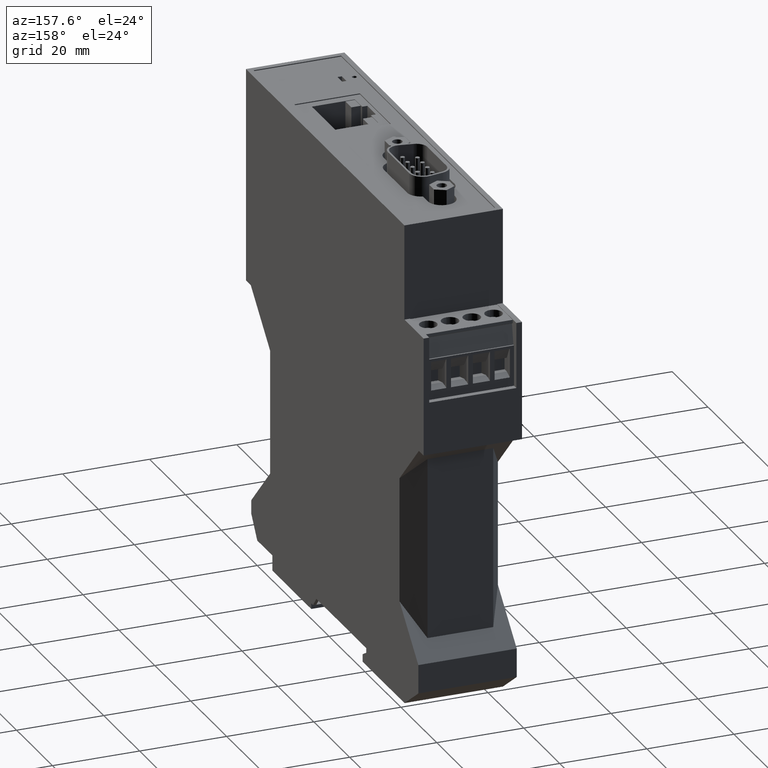
[diagram: clean part render]
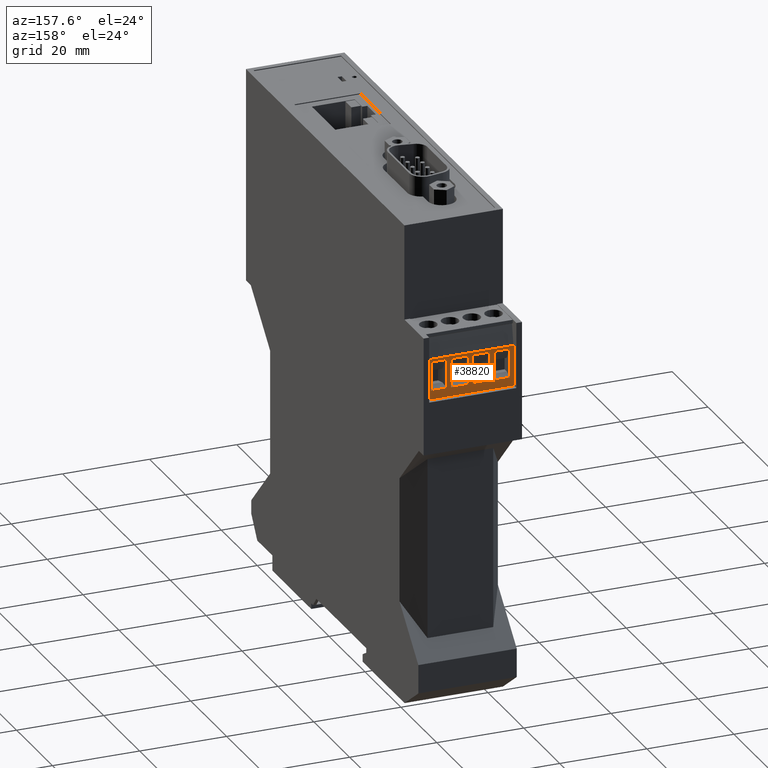
[diagram: same view with one face highlighted and labeled with its STEP entity id]
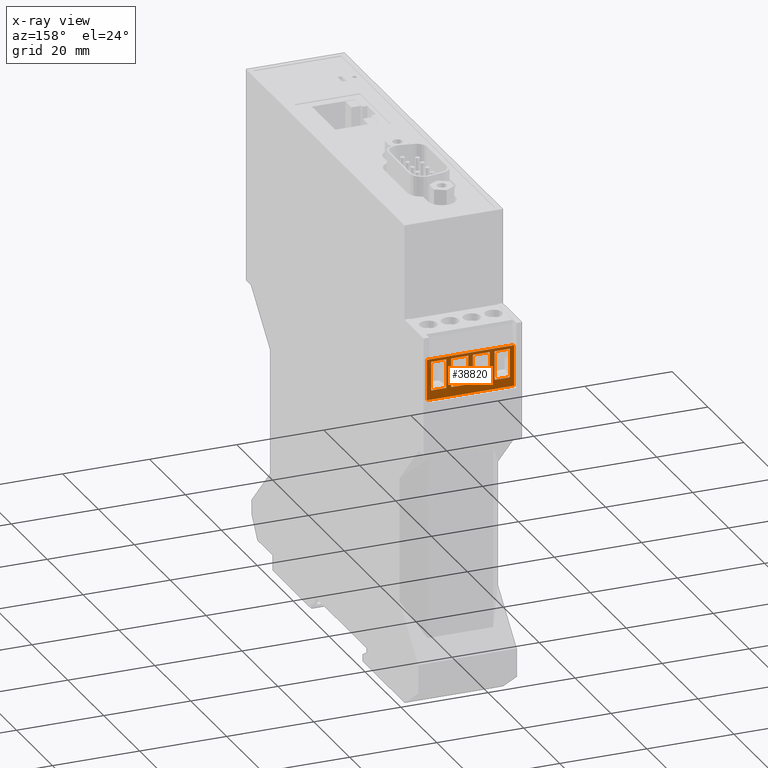
[diagram: x-ray of the same camera — body ghosted, the highlighted face saturated]
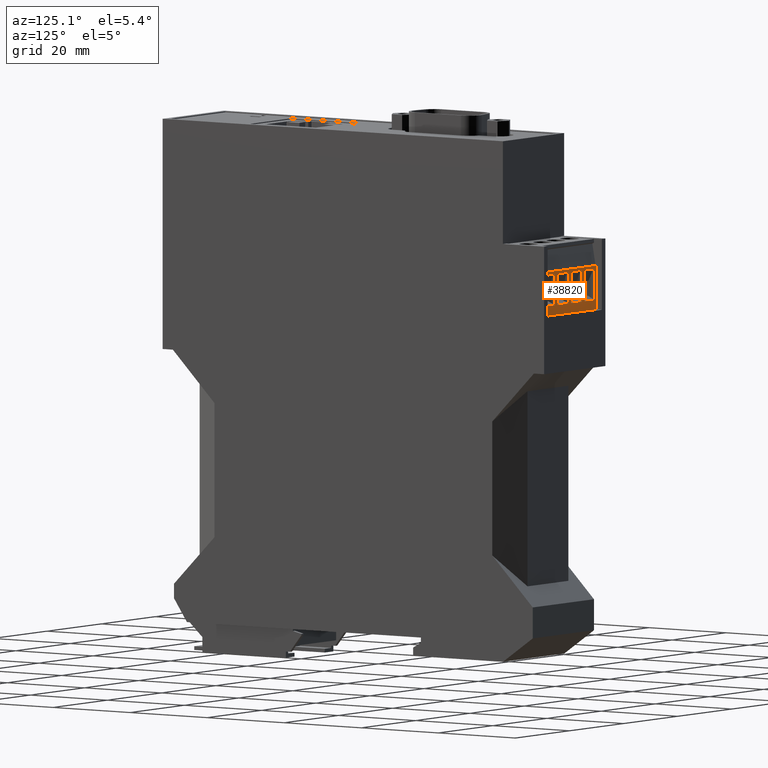
[diagram: same view with one face highlighted and labeled with its STEP entity id]
A machine part, auxiliary view. The second image highlights one B-rep face of the part: STEP entity #38820.
The next image is the same camera in x-ray: the body ghosted, the highlighted face saturated — about 0% of this face is hidden behind the body in this view.
A second angle (auxiliary view) of the same face is appended — the face is thin or edge-on in the first view.
In plain terms, the highlighted planar face has unit normal (0, 1, -0).
Its self-contained STEP definition (entity closure, byte-faithful):
#17620=CARTESIAN_POINT('',(30.7000000000093,70.0000000000079,
21.3000000001629));
#17630=VERTEX_POINT('',#17620);
#17680=CARTESIAN_POINT('',(30.7000000000093,70.0000000000079,0.));
#17690=DIRECTION('',(-3.43464755630887E-38,-2.21419669665522E-24,-1.));
#17700=VECTOR('',#17690,1.);
#17710=LINE('',#17680,#17700);
#17720=CARTESIAN_POINT('',(30.7000000000093,70.0000000000079,
1.30000000017083));
#17730=VERTEX_POINT('',#17720);
#17740=EDGE_CURVE('',#17630,#17730,#17710,.T.);
#34670=CARTESIAN_POINT('',(30.7000000000095,79.3850000000075,
21.3000000001629));
#34680=VERTEX_POINT('',#34670);
#34710=CARTESIAN_POINT('',(30.7000000000086,24.,21.3000000001629));
#34720=DIRECTION('',(1.54465812121769E-14,1.,-2.21419687687968E-24));
#34730=VECTOR('',#34720,1.);
#34740=LINE('',#34710,#34730);
#34750=EDGE_CURVE('',#17630,#34680,#34740,.T.);
#35310=CARTESIAN_POINT('',(30.7000000000086,24.,1.30000000017083));
#35320=DIRECTION('',(-1.54465812121769E-14,-1.,2.18623649095503E-24));
#35330=VECTOR('',#35320,1.);
#35340=LINE('',#35310,#35330);
#35350=CARTESIAN_POINT('',(30.7000000000095,79.3850000000075,
1.30000000017083));
#35360=VERTEX_POINT('',#35350);
#35370=EDGE_CURVE('',#35360,#17730,#35340,.T.);
#37160=CARTESIAN_POINT('',(30.7000000000095,79.3850000000075,
18.800000000168));
#37170=DIRECTION('',(0.,0.,1.));
#37180=VECTOR('',#37170,1.);
#37190=LINE('',#37160,#37180);
#37200=EDGE_CURVE('',#35360,#34680,#37190,.T.);
#37350=CARTESIAN_POINT('',(30.7000000000095,79.1850000000074,
1.90000000016795));
#37360=DIRECTION('',(1.,-1.54465812121769E-14,0.));
#37370=DIRECTION('',(-1.54465812121769E-14,-1.,0.));
#37380=AXIS2_PLACEMENT_3D('',#37350,#37360,#37370);
#37390=PLANE('',#37380);
#37400=ORIENTED_EDGE('',*,*,#17740,.T.);
#37410=ORIENTED_EDGE('',*,*,#34750,.F.);
#37420=ORIENTED_EDGE('',*,*,#37200,.T.);
#37430=ORIENTED_EDGE('',*,*,#35370,.F.);
#37440=EDGE_LOOP('',(#37430,#37420,#37410,#37400));
#37450=FACE_OUTER_BOUND('',#37440,.T.);
#37460=CARTESIAN_POINT('',(30.7000000000088,32.0872691733774,
16.8308375809643));
#37470=DIRECTION('',(-1.54465812121769E-14,-1.,2.17087541685807E-15));
#37480=VECTOR('',#37470,1.);
#37490=LINE('',#37460,#37480);
#37500=CARTESIAN_POINT('',(30.7000000000095,78.7500000000079,
16.8308375809642));
#37510=VERTEX_POINT('',#37500);
#37520=CARTESIAN_POINT('',(30.7000000000094,72.0917093768518,
16.8308375809642));
#37530=VERTEX_POINT('',#37520);
#37540=EDGE_CURVE('',#37510,#37530,#37490,.T.);
#37550=ORIENTED_EDGE('',*,*,#37540,.T.);
#37560=CARTESIAN_POINT('',(30.7000000000095,78.7500000000079,
18.800000000168));
#37570=DIRECTION('',(0.,0.,-1.));
#37580=VECTOR('',#37570,1.);
#37590=LINE('',#37560,#37580);
#37600=CARTESIAN_POINT('',(30.7000000000095,78.7500000000079,
20.3474841664259));
#37610=VERTEX_POINT('',#37600);
#37620=EDGE_CURVE('',#37610,#37510,#37590,.T.);
#37630=ORIENTED_EDGE('',*,*,#37620,.T.);
#37640=CARTESIAN_POINT('',(30.7000000000088,32.0872691733774,
20.3474841664258));
#37650=DIRECTION('',(1.54465812121769E-14,1.,1.35140074629844E-15));
#37660=VECTOR('',#37650,1.);
#37670=LINE('',#37640,#37660);
#37680=CARTESIAN_POINT('',(30.7000000000094,72.0917093768518,
20.3474841664259));
#37690=VERTEX_POINT('',#37680);
#37700=EDGE_CURVE('',#37690,#37610,#37670,.T.);
#37710=ORIENTED_EDGE('',*,*,#37700,.T.);
#37720=CARTESIAN_POINT('',(30.7000000000094,72.0917093768518,
18.800000000168));
#37730=DIRECTION('',(0.,0.,1.));
#37740=VECTOR('',#37730,1.);
#37750=LINE('',#37720,#37740);
#37760=EDGE_CURVE('',#37530,#37690,#37750,.T.);
#37770=ORIENTED_EDGE('',*,*,#37760,.T.);
#37780=EDGE_LOOP('',(#37770,#37710,#37630,#37550));
#37790=FACE_BOUND('',#37780,.T.);
#37800=CARTESIAN_POINT('',(30.7000000000088,32.0872691733774,
6.83083758096431));
#37810=DIRECTION('',(-1.54465812121769E-14,-1.,2.17087541685807E-15));
#37820=VECTOR('',#37810,1.);
#37830=LINE('',#37800,#37820);
#37840=CARTESIAN_POINT('',(30.7000000000095,78.7500000000079,
6.83083758096421));
#37850=VERTEX_POINT('',#37840);
#37860=CARTESIAN_POINT('',(30.7000000000094,72.0917093768518,
6.83083758096422));
#37870=VERTEX_POINT('',#37860);
#37880=EDGE_CURVE('',#37850,#37870,#37830,.T.);
#37890=ORIENTED_EDGE('',*,*,#37880,.T.);
#37900=CARTESIAN_POINT('',(30.7000000000095,78.7500000000079,
13.800000000168));
#37910=DIRECTION('',(0.,0.,1.));
#37920=VECTOR('',#37910,1.);
#37930=LINE('',#37900,#37920);
#37940=CARTESIAN_POINT('',(30.7000000000095,78.7500000000079,
10.7691624193718));
#37950=VERTEX_POINT('',#37940);
#37960=EDGE_CURVE('',#37850,#37950,#37930,.T.);
#37970=ORIENTED_EDGE('',*,*,#37960,.F.);
#37980=CARTESIAN_POINT('',(30.7000000000088,32.0872691733774,
10.7691624193717));
#37990=DIRECTION('',(-1.54465812121769E-14,-1.,-2.17087541685807E-15));
#38000=VECTOR('',#37990,1.);
#38010=LINE('',#37980,#38000);
#38020=CARTESIAN_POINT('',(30.7000000000094,72.0917093768518,
10.7691624193718));
#38030=VERTEX_POINT('',#38020);
#38040=EDGE_CURVE('',#37950,#38030,#38010,.T.);
#38050=ORIENTED_EDGE('',*,*,#38040,.F.);
#38060=CARTESIAN_POINT('',(30.7000000000094,72.0917093768518,
13.800000000168));
#38070=DIRECTION('',(0.,0.,-1.));
#38080=VECTOR('',#38070,1.);
#38090=LINE('',#38060,#38080);
#38100=EDGE_CURVE('',#38030,#37870,#38090,.T.);
#38110=ORIENTED_EDGE('',*,*,#38100,.F.);
#38120=EDGE_LOOP('',(#38110,#38050,#37970,#37890));
#38130=FACE_BOUND('',#38120,.T.);
#38140=CARTESIAN_POINT('',(30.7000000000088,32.0872691733774,
15.7691624193717));
#38150=DIRECTION('',(-1.54465812121769E-14,-1.,-2.17087541685807E-15));
#38160=VECTOR('',#38150,1.);
#38170=LINE('',#38140,#38160);
#38180=CARTESIAN_POINT('',(30.7000000000095,78.7500000000079,
15.7691624193718));
#38190=VERTEX_POINT('',#38180);
#38200=CARTESIAN_POINT('',(30.7000000000094,72.0917093768518,
15.7691624193718));
#38210=VERTEX_POINT('',#38200);
#38220=EDGE_CURVE('',#38190,#38210,#38170,.T.);
#38230=ORIENTED_EDGE('',*,*,#38220,.F.);
#38240=CARTESIAN_POINT('',(30.7000000000094,72.0917093768518,
18.800000000168));
#38250=DIRECTION('',(0.,0.,-1.));
#38260=VECTOR('',#38250,1.);
#38270=LINE('',#38240,#38260);
#38280=CARTESIAN_POINT('',(30.7000000000094,72.0917093768518,
11.8308375809642));
#38290=VERTEX_POINT('',#38280);
#38300=EDGE_CURVE('',#38210,#38290,#38270,.T.);
#38310=ORIENTED_EDGE('',*,*,#38300,.F.);
#38320=CARTESIAN_POINT('',(30.7000000000088,32.0872691733774,
11.8308375809643));
#38330=DIRECTION('',(-1.54465812121769E-14,-1.,2.17087541685807E-15));
#38340=VECTOR('',#38330,1.);
#38350=LINE('',#38320,#38340);
#38360=CARTESIAN_POINT('',(30.7000000000095,78.7500000000079,
11.8308375809642));
#38370=VERTEX_POINT('',#38360);
#38380=EDGE_CURVE('',#38370,#38290,#38350,.T.);
#38390=ORIENTED_EDGE('',*,*,#38380,.T.);
#38400=CARTESIAN_POINT('',(30.7000000000095,78.7500000000079,
18.800000000168));
#38410=DIRECTION('',(0.,0.,1.));
#38420=VECTOR('',#38410,1.);
#38430=LINE('',#38400,#38420);
#38440=EDGE_CURVE('',#38370,#38190,#38430,.T.);
#38450=ORIENTED_EDGE('',*,*,#38440,.F.);
#38460=EDGE_LOOP('',(#38450,#38390,#38310,#38230));
#38470=FACE_BOUND('',#38460,.T.);
#38480=CARTESIAN_POINT('',(30.7000000000088,32.0872691733774,
2.25251583391023));
#38490=DIRECTION('',(1.54465812121769E-14,1.,-1.35140074629844E-15));
#38500=VECTOR('',#38490,1.);
#38510=LINE('',#38480,#38500);
#38520=CARTESIAN_POINT('',(30.7000000000094,72.0917093768518,
2.25251583391018));
#38530=VERTEX_POINT('',#38520);
#38540=CARTESIAN_POINT('',(30.7000000000095,78.7500000000079,
2.25251583391016));
#38550=VERTEX_POINT('',#38540);
#38560=EDGE_CURVE('',#38530,#38550,#38510,.T.);
#38570=ORIENTED_EDGE('',*,*,#38560,.F.);
#38580=CARTESIAN_POINT('',(30.7000000000095,78.7500000000079,
8.80000000016803));
#38590=DIRECTION('',(0.,0.,1.));
#38600=VECTOR('',#38590,1.);
#38610=LINE('',#38580,#38600);
#38620=CARTESIAN_POINT('',(30.7000000000095,78.7500000000079,
5.76916241937186));
#38630=VERTEX_POINT('',#38620);
#38640=EDGE_CURVE('',#38550,#38630,#38610,.T.);
#38650=ORIENTED_EDGE('',*,*,#38640,.F.);
#38660=CARTESIAN_POINT('',(30.7000000000088,32.0872691733774,
5.76916241937176));
#38670=DIRECTION('',(-1.54465812121769E-14,-1.,-2.17087541685807E-15));
#38680=VECTOR('',#38670,1.);
#38690=LINE('',#38660,#38680);
#38700=CARTESIAN_POINT('',(30.7000000000094,72.0917093768518,
5.76916241937185));
#38710=VERTEX_POINT('',#38700);
#38720=EDGE_CURVE('',#38630,#38710,#38690,.T.);
#38730=ORIENTED_EDGE('',*,*,#38720,.F.);
#38740=CARTESIAN_POINT('',(30.7000000000094,72.0917093768518,
8.80000000016803));
#38750=DIRECTION('',(0.,0.,-1.));
#38760=VECTOR('',#38750,1.);
#38770=LINE('',#38740,#38760);
#38780=EDGE_CURVE('',#38710,#38530,#38770,.T.);
#38790=ORIENTED_EDGE('',*,*,#38780,.F.);
#38800=EDGE_LOOP('',(#38790,#38730,#38650,#38570));
#38810=FACE_BOUND('',#38800,.T.);
#38820=ADVANCED_FACE('',(#37450,#37790,#38130,#38470,#38810),#37390,.T.)
;